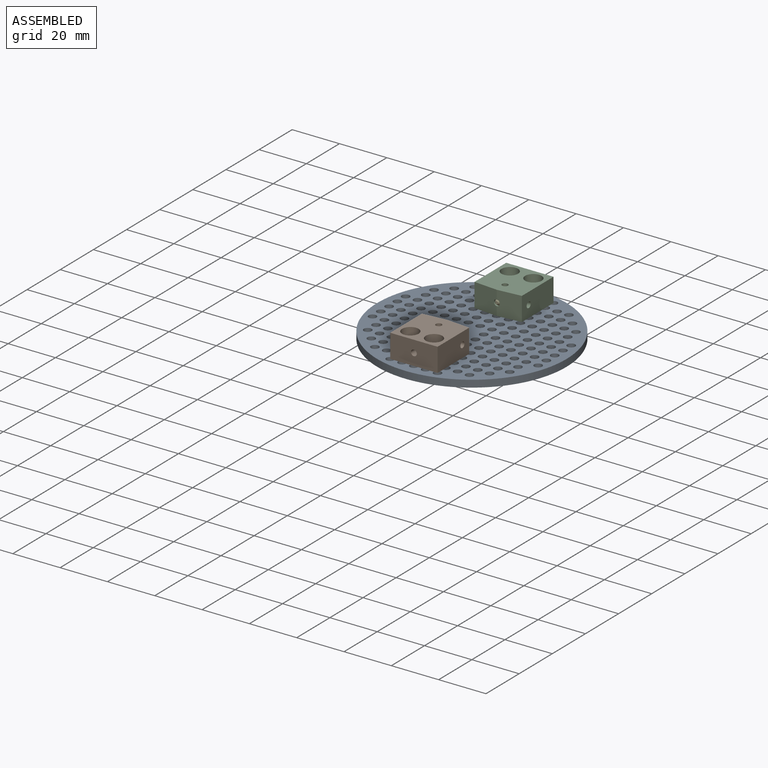
[diagram: assembled view]
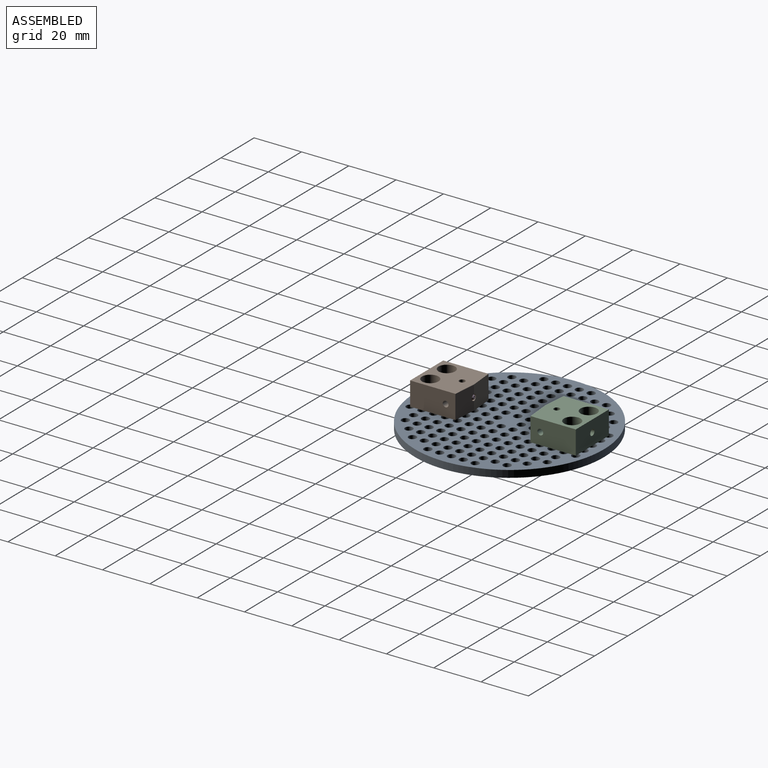
[diagram: assembled view, second angle]
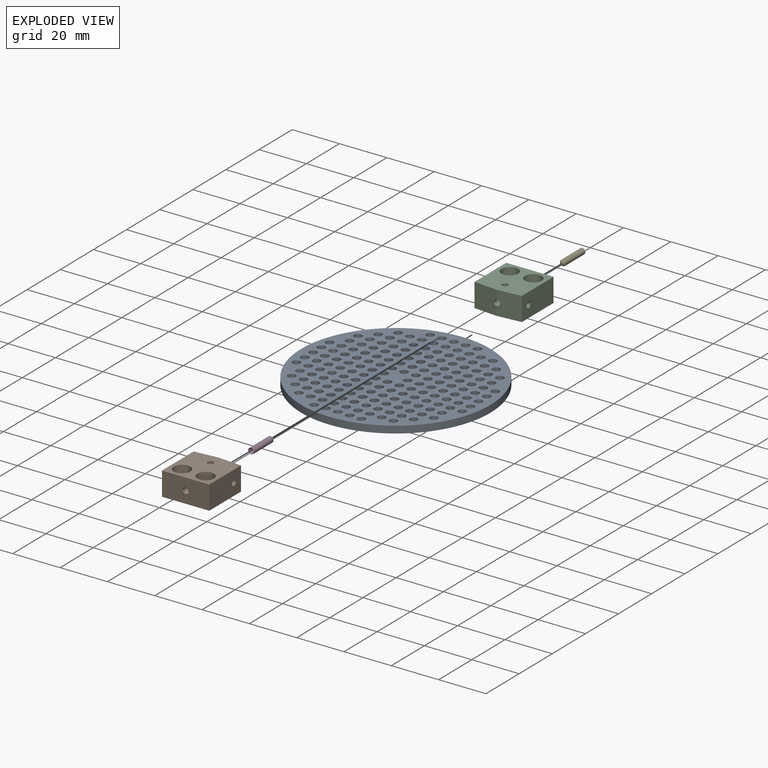
[diagram: exploded view]
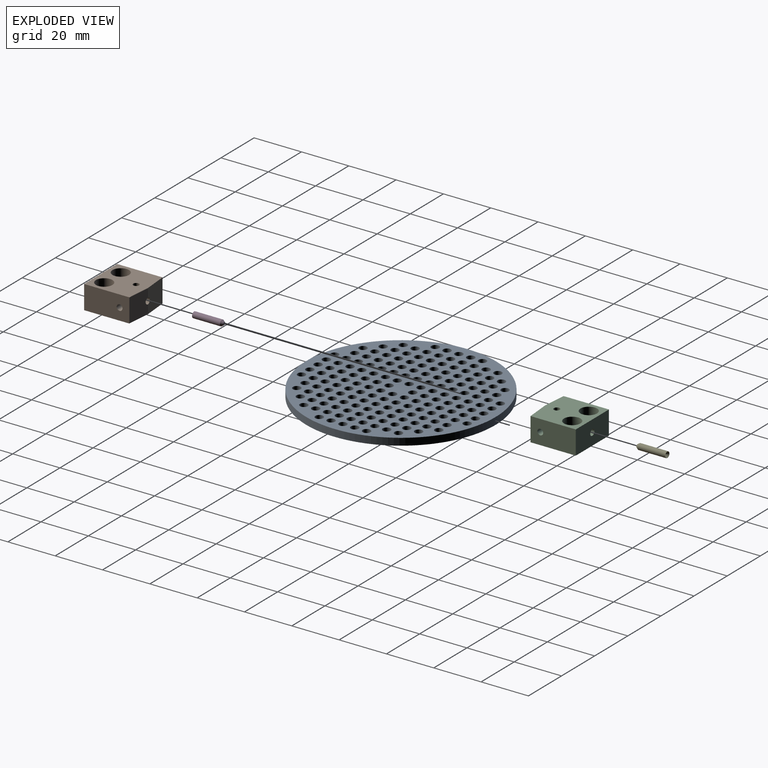
[diagram: exploded view, second angle]
FCSTD DOCUMENT  (FreeCAD 0.21R0.21.2)
Label: PhilippsXL30_DipoleTrap
License: All rights reserved
LicenseURL: https://en.wikipedia.org/wiki/All_rights_reserved
objects: Part::FeaturePython×8, App::Link×5, Part::Cylinder×2
note: 10 computed .brp shape members not serialized (recipe doc carries the construction recipe); baked Part::Feature solids carry a one-line shape summary decoded from their .brp
EXTERNAL_REF file=XL30SampleholderBreadboard_D80.FCStd obj=Cut
EXTERNAL_REF file=../../Optics/FiberMount/StaticFiberFerruleMount_M4.FCStd obj=Cut004
EXTERNAL_REF file=../../Optics/FiberMount/FiberFerruleParameterized.FCStd obj=Cut

FEATURE [App::Link] Link  label="Breadboard"
  LinkPlacement = pos=(0,0,-3) rot=(0,0,1;0rad)
  LinkedObject = -> <external XL30SampleholderBreadboard_D80.FCStd>#Cut
  Placement = pos=(0,0,-3) rot=(0,0,1;0rad)
FEATURE [App::Link] Link001  label="FiberMount"
  LinkPlacement = pos=(0,-35,0) rot=(0,0,1;0rad)
  LinkedObject = -> <external ../../Optics/FiberMount/StaticFiberFerruleMount_M4.FCStd>#Cut004
  Placement = pos=(0,-35,0) rot=(0,0,1;0rad)
FEATURE [App::Link] Link002  label="FiberMount001"
  LinkPlacement = pos=(0,35,0) rot=(0,0,1;3.14159rad)
  LinkedObject = -> <external ../../Optics/FiberMount/StaticFiberFerruleMount_M4.FCStd>#Cut004
  Placement = pos=(0,35,0) rot=(0,0,1;3.14159rad)
FEATURE [Part::FeaturePython] Screw  label="M4x8-Screw"  # Fasteners workbench fastener (typed FeaturePython)
  Placement = pos=(-5,-30,6) rot=(0,0,1;0rad)
  diameter = 4
  invert = false
  leftHanded = false
  length = 1
  lengthCustom = 8
  matchOuter = false
  offset = 0
  thread = false
  type = 34
FEATURE [Part::FeaturePython] Screw001  label="M4x8-Screw010"  # Fasteners workbench fastener (typed FeaturePython)
  Placement = pos=(5,-30,6) rot=(0,0,1;0rad)
  diameter = 4
  invert = false
  leftHanded = false
  length = 1
  lengthCustom = 8
  matchOuter = false
  offset = 0
  thread = false
  type = 34
FEATURE [Part::FeaturePython] Screw002  label="M4x8-Screw011"  # Fasteners workbench fastener (typed FeaturePython)
  Placement = pos=(-5,30,6) rot=(0,0,1;0rad)
  diameter = 4
  invert = false
  leftHanded = false
  length = 1
  lengthCustom = 8
  matchOuter = false
  offset = 0
  thread = false
  type = 34
FEATURE [Part::FeaturePython] Screw003  label="M4x8-Screw012"  # Fasteners workbench fastener (typed FeaturePython)
  Placement = pos=(5,30,6) rot=(0,0,1;0rad)
  diameter = 4
  invert = false
  leftHanded = false
  length = 1
  lengthCustom = 8
  matchOuter = false
  offset = 0
  thread = false
  type = 34
FEATURE [Part::Cylinder] Cylinder  label="Fiber1"
  Angle = 360
  AttacherType = Attacher::AttachEngine3D
  FirstAngle = 0
  Height = 12.7
  Placement = pos=(0,14.9,5) rot=(1,0,0;-1.5708rad)
  Radius = 0.22
  SecondAngle = 0
FEATURE [Part::Cylinder] Cylinder001  label="Fiber2"
  Angle = 360
  AttacherType = Attacher::AttachEngine3D
  FirstAngle = 0
  Height = 12.7
  Placement = pos=(0,-14.9,5) rot=(1,0,0;1.5708rad)
  Radius = 0.22
  SecondAngle = 0
FEATURE [Part::FeaturePython] ThreadedRod  label="M3x5-ThreadedRod"  # Fasteners workbench fastener (typed FeaturePython)
  Placement = pos=(0,20,11.25) rot=(0,0,1;0rad)
  diameter = 4
  diameterCustom = 6
  invert = false
  leftHanded = false
  length = 5
  matchOuter = false
  offset = 0
  pitchCustom = 1
  thread = false
  type = 4
FEATURE [Part::FeaturePython] ThreadedRod001  label="M3x5-ThreadedRod004"  # Fasteners workbench fastener (typed FeaturePython)
  Placement = pos=(0,-20,11.25) rot=(0,0,1;0rad)
  diameter = 4
  diameterCustom = 6
  invert = false
  leftHanded = false
  length = 5
  matchOuter = false
  offset = 0
  pitchCustom = 1
  thread = false
  type = 4
FEATURE [Part::FeaturePython] ThreadedRod002  label="M3x5-ThreadedRod009"  # Fasteners workbench fastener (typed FeaturePython)
  Placement = pos=(-1.25,-20,5) rot=(0,1,0;1.5708rad)
  diameter = 4
  diameterCustom = 6
  invert = false
  leftHanded = false
  length = 5
  matchOuter = false
  offset = 0
  pitchCustom = 1
  thread = false
  type = 4
FEATURE [Part::FeaturePython] ThreadedRod003  label="M3x5-ThreadedRod010"  # Fasteners workbench fastener (typed FeaturePython)
  Placement = pos=(-1.25,20,5) rot=(0,1,0;1.5708rad)
  diameter = 4
  diameterCustom = 6
  invert = false
  leftHanded = false
  length = 5
  matchOuter = false
  offset = 0
  pitchCustom = 1
  thread = false
  type = 4
FEATURE [App::Link] Link003  label="FiberFerrule"
  LinkPlacement = pos=(0,-14.9,5) rot=(1,0,0;1.5708rad)
  LinkedObject = -> <external ../../Optics/FiberMount/FiberFerruleParameterized.FCStd>#Cut
  Placement = pos=(0,-14.9,5) rot=(1,0,0;1.5708rad)
FEATURE [App::Link] Link004  label="FiberFerrule001"
  LinkPlacement = pos=(0,14.9,5) rot=(1,0,0;-1.5708rad)
  LinkedObject = -> <external ../../Optics/FiberMount/FiberFerruleParameterized.FCStd>#Cut
  Placement = pos=(0,14.9,5) rot=(1,0,0;-1.5708rad)

RESOLVED EXTERNAL PARTS (link-assembly join: the EXTERNAL_REF files above that resolve inside this repo's crawl, each included once):
---- part ../../Optics/FiberMount/FiberFerruleParameterized.FCStd = doc fcstd_4d1104f74157 ----
FCSTD DOCUMENT  (FreeCAD 0.21R0.21.2)
Label: FiberFerruleParameterized
License: All rights reserved
LicenseURL: https://en.wikipedia.org/wiki/All_rights_reserved
objects: Part::Cylinder×2, Part::Cone×2, Part::MultiFuse×2, Spreadsheet::Sheet×1, Part::Cut×1
note: 7 computed .brp shape members not serialized (recipe doc carries the construction recipe); baked Part::Feature solids carry a one-line shape summary decoded from their .brp

FEATURE [Spreadsheet::Sheet] Spreadsheet  label="FerruleConfig"
  cells = A2='Ferrule OD; B2(ferrule_od)=2.5; C2='outer diameter; D2='typ. 2.5mm or 1.25mm; A3='Ferrule ID; B3(ferrule_id)=0.44; C3='Inner diameter; D3='typ. 440 um / 125um / 231 um; A4='Ferrule Length; B4(ferrule_length)=12.7; C4='Ferrule length; D4='typ 12.7mm / 10.5mm; A5='Front angle; B5(ferrule_front_angle)=35; C5='Angle on front; D5='typ 35 deg; A6='Back angle; B6(ferrule_back_angle)=35; C6='Angle on back; D6='typ 35 deg
FEATURE [Part::Cylinder] Cylinder
  Angle = 360
  AttacherType = Attacher::AttachEngine3D
  FirstAngle = 0
  Height = 11.7717
  Placement = pos=(0,0,0.928296) rot=(0,0,1;0rad)
  Radius = 1.25
  SecondAngle = 0
  expr: .Placement.Base.z = (<<FerruleConfig>>.ferrule_od - 1.2) / (2 * tan(<<FerruleConfig>>.ferrule_front_angle))
  expr: Height = <<FerruleConfig>>.ferrule_length - (<<FerruleConfig>>.ferrule_od - 1.2) / (2 * tan(<<FerruleConfig>>.ferrule_front_angle))
  expr: Radius = <<FerruleConfig>>.ferrule_od / 2
FEATURE [Part::Cylinder] Cylinder001
  Angle = 360
  AttacherType = Attacher::AttachEngine3D
  FirstAngle = 0
  Height = 12.7
  Radius = 0.22
  SecondAngle = 0
  expr: Height = <<FerruleConfig>>.ferrule_length
  expr: Radius = <<FerruleConfig>>.ferrule_id / 2
FEATURE [Part::Cone] Cone
  Angle = 360
  AttacherType = Attacher::AttachEngine3D
  Height = 0.928296
  Radius1 = 0.6
  Radius2 = 1.25
  expr: Height = (<<FerruleConfig>>.ferrule_od - 1.2) / (2 * tan(<<FerruleConfig>>.ferrule_front_angle))
  expr: Radius2 = <<FerruleConfig>>.ferrule_od / 2
FEATURE [Part::MultiFuse] Fusion
  Shapes = -> [Cylinder,Cone]
FEATURE [Part::Cone] Cone001
  Angle = 360
  AttacherType = Attacher::AttachEngine3D
  Height = 1.47099
  Placement = pos=(0,0,11.229) rot=(0,0,1;0rad)
  Radius1 = 0.22
  Radius2 = 1.25
  expr: .Placement.Base.z = <<FerruleConfig>>.ferrule_length - (<<FerruleConfig>>.ferrule_od - <<FerruleConfig>>.ferrule_id) / (2 * tan(<<FerruleConfig>>.ferrule_back_angle))
  expr: Height = (<<FerruleConfig>>.ferrule_od - <<FerruleConfig>>.ferrule_id) / (2 * tan(<<FerruleConfig>>.ferrule_back_angle))
  expr: Radius1 = <<FerruleConfig>>.ferrule_id / 2
  expr: Radius2 = <<FerruleConfig>>.ferrule_od / 2
FEATURE [Part::MultiFuse] Fusion001
  Shapes = -> [Cylinder001,Cone001]
FEATURE [Part::Cut] Cut  label="FiberFerrule"
  Base = -> Fusion
  Tool = -> Fusion001
---- part ../../Optics/FiberMount/StaticFiberFerruleMount_M4.FCStd = doc fcstd_c1d36705cfa4 ----
FCSTD DOCUMENT  (FreeCAD 0.21R0.21.2)
Label: StaticFiberFerruleMount_M4
License: All rights reserved
LicenseURL: https://en.wikipedia.org/wiki/All_rights_reserved
objects: TechDraw::DrawViewDimension×23, Part::Cylinder×5, Part::Cut×5, TechDraw::DrawProjGroupItem×5, Part::MultiFuse×4, Part::Box×3, TechDraw::DrawViewPart×3, TechDraw::DrawViewSection×3, Part::FeaturePython×2, TechDraw::DrawSVGTemplate×2, TechDraw::DrawPage×2, Part::Compound×1, TechDraw::DrawProjGroup×1
note: 56 computed .brp shape members not serialized (recipe doc carries the construction recipe); baked Part::Feature solids carry a one-line shape summary decoded from their .brp

FEATURE [Part::Box] Box  label="Cube"
  AttacherType = Attacher::AttachEngine3D
  Height = 10
  Length = 20
  Placement = pos=(-10,0,0) rot=(0,0,1;0rad)
  Width = 20
FEATURE [Part::Cylinder] Cylinder
  Angle = 360
  AttacherType = Attacher::AttachEngine3D
  FirstAngle = 0
  Height = 4
  Placement = pos=(0,0,6) rot=(0,0,1;0rad)
  Radius = 3.5
  SecondAngle = 0
FEATURE [Part::Cylinder] Cylinder001
  Angle = 360
  AttacherType = Attacher::AttachEngine3D
  FirstAngle = 0
  Height = 10
  Radius = 2.15
  SecondAngle = 0
FEATURE [Part::MultiFuse] Fusion
  Placement = pos=(-5,5,0) rot=(0,0,1;0rad)
  Shapes = -> [Cylinder001,Cylinder]
FEATURE [Part::Cylinder] Cylinder002
  Angle = 360
  AttacherType = Attacher::AttachEngine3D
  FirstAngle = 0
  Height = 4
  Placement = pos=(0,0,6) rot=(0,0,1;0rad)
  Radius = 3.5
  SecondAngle = 0
FEATURE [Part::Cylinder] Cylinder003
  Angle = 360
  AttacherType = Attacher::AttachEngine3D
  FirstAngle = 0
  Height = 10
  Radius = 2.15
  SecondAngle = 0
FEATURE [Part::MultiFuse] Fusion001
  Placement = pos=(5,5,0) rot=(0,0,1;0rad)
  Shapes = -> [Cylinder003,Cylinder002]
FEATURE [Part::MultiFuse] Fusion002
  Shapes = -> [Fusion,Fusion001]
FEATURE [Part::Cut] Cut
  Base = -> Box
  Tool = -> Fusion002
FEATURE [Part::Cylinder] Cylinder004
  Angle = 360
  AttacherType = Attacher::AttachEngine3D
  FirstAngle = 0
  Height = 20
  Placement = pos=(0,0,5) rot=(1,0,0;-1.5708rad)
  Radius = 1.25
  SecondAngle = 0
FEATURE [Part::Cut] Cut001
  Base = -> Cut
  Tool = -> Cylinder004
FEATURE [Part::FeaturePython] ScrewTap  label="M3x20-ScrewTap"  # Fasteners workbench fastener (typed FeaturePython)
  Placement = pos=(10,15,5) rot=(0,1,0;1.5708rad)
  diameter = 4
  diameterCustom = 20
  invert = false
  leftHanded = false
  length = 20
  matchOuter = false
  offset = 0
  pitchCustom = 1
  thread = false
  type = 2
FEATURE [Part::FeaturePython] ScrewTap001  label="M3x20-ScrewTap001"  # Fasteners workbench fastener (typed FeaturePython)
  Placement = pos=(0,15,15) rot=(0,1,0;0rad)
  diameter = 4
  diameterCustom = 20
  invert = false
  leftHanded = false
  length = 20
  matchOuter = false
  offset = 0
  pitchCustom = 1
  thread = false
  type = 2
FEATURE [Part::Cut] Cut002
  Base = -> Cut001
  Tool = -> ScrewTap
FEATURE [Part::Cut] Cut003
  Base = -> Cut002
  Tool = -> ScrewTap001
FEATURE [Part::Box] Box001  label="Cube001"
  AttacherType = Attacher::AttachEngine3D
  Height = 10
  Length = 15
  Placement = pos=(0,20,0) rot=(0,0,1;-0.087266rad)
  Width = 5
FEATURE [Part::Box] Box002  label="Cube002"
  AttacherType = Attacher::AttachEngine3D
  Height = 10
  Length = 15
  Placement = pos=(0,20,0) rot=(0,0,-1;0.087266rad)
  Width = 5
FEATURE [Part::Compound] Compound
  Links = -> [Box002]
  Placement = pos=(0,0,10) rot=(0,1,0;3.14159rad)
FEATURE [Part::MultiFuse] Fusion003
  Shapes = -> [Compound,Box001]
FEATURE [Part::Cut] Cut004  label="FiberMount"
  Base = -> Cut003
  Tool = -> Fusion003
FEATURE [TechDraw::DrawSVGTemplate] Template
  EditableTexts = Designed_by_Name=Thomas Spielauer; FC-Date=2024-01-30; FC-SC=mm; FC-Title=M4 Fiber Mount; Subtitle=For 2.5mm Ferrules
  Height = 210
  Orientation = 1
  Template = <path>
  Width = 297
FEATURE [TechDraw::DrawProjGroupItem] ProjItem  label="Front"
  CoarseView = false
  Direction = (0,0,1)
  Focus = 100
  HardHidden = false
  IsoCount = 0
  IsoHidden = false
  IsoVisible = false
  LockPosition = true
  Perspective = false
  Rotation = 0
  RotationVector = (-1,0,0)
  Scale = 2.5
  ScaleType = 2
  ScrubCount = 0
  SeamHidden = false
  SeamVisible = false
  SmoothHidden = false
  SmoothVisible = true
  Source = -> [Cut004]
  Type = 0
  X = 0
  XDirection = (-1,0,0)
  Y = 0
FEATURE [TechDraw::DrawProjGroupItem] ProjItem001  label="Left"
  CoarseView = false
  Direction = (1,0,1e-16)
  Focus = 100
  HardHidden = false
  IsoCount = 0
  IsoHidden = false
  IsoVisible = false
  LockPosition = false
  Perspective = false
  Rotation = 0
  RotationVector = (1,0,0)
  Scale = 2.5
  ScaleType = 2
  ScrubCount = 0
  SeamHidden = false
  SeamVisible = false
  SmoothHidden = false
  SmoothVisible = true
  Source = -> [Cut004]
  Type = 1
  X = 83.8051
  XDirection = (-1e-16,0,1)
  Y = 0
FEATURE [TechDraw::DrawProjGroupItem] ProjItem002  label="Rear"
  CoarseView = false
  Direction = (0,0,-1)
  Focus = 100
  HardHidden = false
  IsoCount = 0
  IsoHidden = false
  IsoVisible = false
  LockPosition = false
  Perspective = false
  Rotation = 0
  RotationVector = (1,0,0)
  Scale = 2.5
  ScaleType = 2
  ScrubCount = 0
  SeamHidden = false
  SeamVisible = false
  SmoothHidden = false
  SmoothVisible = true
  Source = -> [Cut004]
  Type = 3
  X = 176.998
  XDirection = (1,0,0)
  Y = 0
FEATURE [TechDraw::DrawProjGroupItem] ProjItem003  label="Top"
  CoarseView = false
  Direction = (0,-1,0)
  Focus = 100
  HardHidden = false
  IsoCount = 0
  IsoHidden = false
  IsoVisible = false
  LockPosition = false
  Perspective = false
  Rotation = 0
  RotationVector = (1,0,0)
  Scale = 2.5
  ScaleType = 2
  ScrubCount = 0
  SeamHidden = false
  SeamVisible = false
  SmoothHidden = false
  SmoothVisible = true
  Source = -> [Cut004]
  Type = 4
  X = 0
  XDirection = (-1,0,0)
  Y = -69.8299
FEATURE [TechDraw::DrawProjGroupItem] ProjItem004  label="Bottom"
  CoarseView = false
  Direction = (0,1,0)
  Focus = 100
  HardHidden = false
  IsoCount = 0
  IsoHidden = false
  IsoVisible = false
  LockPosition = false
  Perspective = false
  Rotation = 0
  RotationVector = (1,0,0)
  Scale = 2.5
  ScaleType = 2
  ScrubCount = 0
  SeamHidden = false
  SeamVisible = false
  SmoothHidden = false
  SmoothVisible = true
  Source = -> [Cut004]
  Type = 5
  X = 0
  XDirection = (-1,0,0)
  Y = 66.0072
FEATURE [TechDraw::DrawProjGroup] ProjGroup
  Anchor = -> ProjItem
  AutoDistribute = false
  LockPosition = false
  ProjectionType = 0
  Rotation = 0
  Scale = 2.5
  ScaleType = 2
  Source = -> [Cut004]
  Views = -> [ProjItem,ProjItem001,ProjItem002,ProjItem003,ProjItem004]
  X = 63.5172
  Y = 109.729
  spacingX = 15
  spacingY = 15
FEATURE [TechDraw::DrawViewDimension] Dimension
  AngleOverride = false
  Arbitrary = false
  ArbitraryTolerances = false
  EqualTolerance = true
  ExtensionAngle = 0
  FormatSpec = %.2w
  FormatSpecOverTolerance = %+.2w
  FormatSpecUnderTolerance = %+.2w
  Inverted = false
  LineAngle = 0
  LockPosition = false
  MeasureType = 1
  OverTolerance = 0
  References2D = -> [ProjItem002]
  Rotation = 0
  ScaleType = 0
  TheoreticalExact = false
  Type = 1
  UnderTolerance = 0
  X = -1.08718
  Y = 38.276
FEATURE [TechDraw::DrawViewDimension] Dimension001
  AngleOverride = false
  Arbitrary = false
  ArbitraryTolerances = false
  EqualTolerance = true
  ExtensionAngle = 0
  FormatSpec = %.2w
  FormatSpecOverTolerance = %+.2w
  FormatSpecUnderTolerance = %+.2w
  Inverted = false
  LineAngle = 0
  LockPosition = false
  MeasureType = 1
  OverTolerance = 0
  References2D = -> [ProjItem002]
  Rotation = 0
  ScaleType = 0
  TheoreticalExact = false
  Type = 2
  UnderTolerance = 0
  X = 33.6541
  Y = 3.92646
FEATURE [TechDraw::DrawViewDimension] Dimension002
  AngleOverride = false
  Arbitrary = false
  ArbitraryTolerances = false
  EqualTolerance = true
  ExtensionAngle = 0
  FormatSpec = %.2w
  FormatSpecOverTolerance = %+.2w
  FormatSpecUnderTolerance = %+.2w
  Inverted = false
  LineAngle = 0
  LockPosition = false
  MeasureType = 1
  OverTolerance = 0
  References2D = -> [ProjItem002]
  Rotation = 0
  ScaleType = 0
  TheoreticalExact = false
  Type = 1
  UnderTolerance = 0
  X = -19.3984
  Y = 49.6787
FEATURE [TechDraw::DrawViewDimension] Dimension003
  AngleOverride = false
  Arbitrary = false
  ArbitraryTolerances = false
  EqualTolerance = true
  ExtensionAngle = 0
  FormatSpec = %.2w
  FormatSpecOverTolerance = %+.2w
  FormatSpecUnderTolerance = %+.2w
  Inverted = false
  LineAngle = 0
  LockPosition = false
  MeasureType = 1
  OverTolerance = 0
  References2D = -> [ProjItem002]
  Rotation = 0
  ScaleType = 0
  TheoreticalExact = false
  Type = 1
  UnderTolerance = 0
  X = 18.4123
  Y = 48.3541
FEATURE [TechDraw::DrawViewDimension] Dimension004
  AngleOverride = false
  Arbitrary = false
  ArbitraryTolerances = false
  EqualTolerance = true
  ExtensionAngle = 0
  FormatSpec = %.2w
  FormatSpecOverTolerance = %+.2w
  FormatSpecUnderTolerance = %+.2w
  Inverted = false
  LineAngle = 0
  LockPosition = false
  MeasureType = 1
  OverTolerance = 0
  References2D = -> [ProjItem002]
  Rotation = 0
  ScaleType = 0
  TheoreticalExact = false
  Type = 2
  UnderTolerance = 0
  X = -36.9072
  Y = 21.9842
FEATURE [TechDraw::DrawViewDimension] Dimension005
  AngleOverride = false
  Arbitrary = false
  ArbitraryTolerances = false
  EqualTolerance = true
  ExtensionAngle = 0
  FormatSpec = %.2w
  FormatSpecOverTolerance = %+.2w
  FormatSpecUnderTolerance = %+.2w
  Inverted = false
  LineAngle = 0
  LockPosition = false
  MeasureType = 1
  OverTolerance = 0
  References2D = -> [ProjItem002]
  Rotation = 0
  ScaleType = 0
  TheoreticalExact = false
  Type = 2
  UnderTolerance = 0
  X = -49.4824
  Y = 5.98178
FEATURE [TechDraw::DrawViewDimension] Dimension006
  AngleOverride = false
  Arbitrary = false
  ArbitraryTolerances = false
  EqualTolerance = true
  ExtensionAngle = 0
  FormatSpec = %.2w
  FormatSpecOverTolerance = %+.2w
  FormatSpecUnderTolerance = %+.2w
  Inverted = false
  LineAngle = 0
  LockPosition = false
  MeasureType = 1
  OverTolerance = 0
  References2D = -> [ProjItem001]
  Rotation = 0
  ScaleType = 0
  TheoreticalExact = false
  Type = 2
  UnderTolerance = 0
  X = 20.9282
  Y = -0.08017
FEATURE [TechDraw::DrawViewDimension] Dimension007
  AngleOverride = false
  Arbitrary = false
  ArbitraryTolerances = false
  EqualTolerance = true
  ExtensionAngle = 0
  FormatSpec = %.2w
  FormatSpecOverTolerance = %+.2w
  FormatSpecUnderTolerance = %+.2w
  Inverted = false
  LineAngle = 0
  LockPosition = false
  MeasureType = 1
  OverTolerance = 0
  References2D = -> [ProjItem001]
  Rotation = 0
  ScaleType = 0
  TheoreticalExact = false
  Type = 1
  UnderTolerance = 0
  X = 1.11941
  Y = 39.7819
FEATURE [TechDraw::DrawViewDimension] Dimension008
  AngleOverride = false
  Arbitrary = false
  ArbitraryTolerances = false
  EqualTolerance = true
  ExtensionAngle = 0
  FormatSpec = %.2w
  FormatSpecOverTolerance = %+.2w
  FormatSpecUnderTolerance = %+.2w
  Inverted = false
  LineAngle = 0
  LockPosition = false
  MeasureType = 1
  OverTolerance = 0
  References2D = -> [ProjItem]
  Rotation = 0
  ScaleType = 0
  TheoreticalExact = false
  Type = 6
  UnderTolerance = 0
  X = 17.4114
  Y = -11.6712
FEATURE [TechDraw::DrawViewDimension] Dimension009
  AngleOverride = false
  Arbitrary = false
  ArbitraryTolerances = false
  EqualTolerance = true
  ExtensionAngle = 0
  FormatSpec = ⌀%.2w
  FormatSpecOverTolerance = %+.2w
  FormatSpecUnderTolerance = %+.2w
  Inverted = false
  LineAngle = 0
  LockPosition = false
  MeasureType = 1
  OverTolerance = 0
  References2D = -> [ProjItem]
  Rotation = 0
  ScaleType = 0
  TheoreticalExact = false
  Type = 5
  UnderTolerance = 0
  X = 34.847
  Y = 32.1835
FEATURE [TechDraw::DrawViewDimension] Dimension010
  AngleOverride = false
  Arbitrary = false
  ArbitraryTolerances = false
  EqualTolerance = true
  ExtensionAngle = 0
  FormatSpec = ⌀%.2w
  FormatSpecOverTolerance = %+.2w
  FormatSpecUnderTolerance = %+.2w
  Inverted = false
  LineAngle = 0
  LockPosition = false
  MeasureType = 1
  OverTolerance = 0
  References2D = -> [ProjItem]
  Rotation = 0
  ScaleType = 0
  TheoreticalExact = false
  Type = 5
  UnderTolerance = 0
  X = 42.735
  Y = 24.4512
FEATURE [TechDraw::DrawViewDimension] Dimension011
  AngleOverride = false
  Arbitrary = false
  ArbitraryTolerances = false
  EqualTolerance = true
  ExtensionAngle = 0
  FormatSpec = ⌀%.2w
  FormatSpecOverTolerance = %+.2w
  FormatSpecUnderTolerance = %+.2w
  Inverted = false
  LineAngle = 0
  LockPosition = false
  MeasureType = 1
  OverTolerance = 0
  References2D = -> [ProjItem003]
  Rotation = 0
  ScaleType = 0
  TheoreticalExact = false
  Type = 5
  UnderTolerance = 0
  X = 36.0608
  Y = 7.78296
FEATURE [TechDraw::DrawViewDimension] Dimension012
  AngleOverride = false
  Arbitrary = false
  ArbitraryTolerances = false
  EqualTolerance = true
  ExtensionAngle = 0
  FormatSpec = ⌀%.2w (M3)
  FormatSpecOverTolerance = %+.2w
  FormatSpecUnderTolerance = %+.2w
  Inverted = false
  LineAngle = 0
  LockPosition = false
  MeasureType = 1
  OverTolerance = 0
  References2D = -> [ProjItem]
  Rotation = 0
  ScaleType = 0
  TheoreticalExact = false
  Type = 5
  UnderTolerance = 0
  X = 47.6967
  Y = -20.8245
FEATURE [TechDraw::DrawViewDimension] Dimension013
  AngleOverride = false
  Arbitrary = false
  ArbitraryTolerances = false
  EqualTolerance = true
  ExtensionAngle = 0
  FormatSpec = ⌀%.2w (M3)
  FormatSpecOverTolerance = %+.2w
  FormatSpecUnderTolerance = %+.2w
  Inverted = false
  LineAngle = 0
  LockPosition = false
  MeasureType = 1
  OverTolerance = 0
  References2D = -> [ProjItem001]
  Rotation = 0
  ScaleType = 0
  TheoreticalExact = false
  Type = 5
  UnderTolerance = 0
  X = -33.134
  Y = 3.74181
FEATURE [TechDraw::DrawViewDimension] Dimension014
  AngleOverride = false
  Arbitrary = false
  ArbitraryTolerances = false
  EqualTolerance = true
  ExtensionAngle = 0
  FormatSpec = %.2w
  FormatSpecOverTolerance = %+.2w
  FormatSpecUnderTolerance = %+.2w
  Inverted = false
  LineAngle = 0
  LockPosition = false
  MeasureType = 1
  OverTolerance = 0
  References2D = -> [ProjItem004]
  Rotation = 0
  ScaleType = 0
  TheoreticalExact = false
  Type = 1
  UnderTolerance = 0
  X = 10.9437
  Y = -18.4908
FEATURE [TechDraw::DrawPage] Page
  KeepUpdated = true
  NextBalloonIndex = 1
  ProjectionType = 0
  Template = -> Template
  Views = -> [ProjGroup,Dimension,Dimension001,Dimension002,Dimension003,Dimension004,Dimension005,Dimension006,Dimension007,Dimension008,Dimension009,Dimension010,Dimension011,Dimension012,Dimension013,Dimension014]
FEATURE [TechDraw::DrawSVGTemplate] Template001
  EditableTexts = Designed_by_Name=Thomas Spielauer; FC-Date=2024-01-30; FC-SC=mm; FC-SH=2/2; FC-Title=M4 Fiber Mount; Subtitle=For 2.5mm fiber ferrules
  Height = 210
  Orientation = 1
  Template = <path>
  Width = 297
FEATURE [TechDraw::DrawViewPart] View
  CoarseView = false
  Direction = (0,0,1)
  Focus = 100
  HardHidden = false
  IsoCount = 0
  IsoHidden = false
  IsoVisible = false
  LockPosition = false
  Perspective = false
  Rotation = 0
  Scale = 2
  ScaleType = 2
  ScrubCount = 0
  SeamHidden = false
  SeamVisible = false
  SmoothHidden = false
  SmoothVisible = true
  Source = -> [Cut004]
  X = 49.0155
  XDirection = (-1,0,0)
  Y = 162
FEATURE [TechDraw::DrawViewSection] SectionView  label="Section  - "
  BaseView = -> View
  CoarseView = false
  CutSurfaceDisplay = 2
  Direction = (1,1e-16,0)
  FileGeomPattern = <path>
  FileHatchPattern = <path>
  Focus = 100
  FuseBeforeCut = false
  HardHidden = false
  HatchOffset = (0,0,0)
  HatchRotation = 0
  HatchScale = 1
  IsoCount = 0
  IsoHidden = false
  IsoVisible = false
  LockPosition = false
  NameGeomPattern = Diamond
  Perspective = false
  Rotation = -90
  Scale = 2
  ScaleType = 2
  ScrubCount = 0
  SeamHidden = false
  SeamVisible = false
  SectionDirection = 4
  SectionNormal = (1,1e-16,0)
  SectionOrigin = (0,10,5)
  SmoothHidden = false
  SmoothVisible = true
  Source = -> [Cut004]
  TrimAfterCut = false
  X = 98.3829
  XDirection = (-1e-16,1,0)
  Y = 161.597
FEATURE [TechDraw::DrawViewPart] View001
  CoarseView = false
  Direction = (0,0,1)
  Focus = 100
  HardHidden = false
  IsoCount = 0
  IsoHidden = false
  IsoVisible = false
  LockPosition = false
  Perspective = false
  Rotation = 0
  Scale = 2
  ScaleType = 2
  ScrubCount = 0
  SeamHidden = false
  SeamVisible = false
  SmoothHidden = false
  SmoothVisible = true
  Source = -> [Cut004]
  X = 168.995
  XDirection = (-1,0,0)
  Y = 161.465
FEATURE [TechDraw::DrawViewSection] SectionView001  label="Section  - 001"
  BaseView = -> View001
  CoarseView = false
  CutSurfaceDisplay = 2
  Direction = (1,1e-16,0)
  FileGeomPattern = <path>
  FileHatchPattern = <path>
  Focus = 100
  FuseBeforeCut = false
  HardHidden = false
  HatchOffset = (0,0,0)
  HatchRotation = 0
  HatchScale = 1
  IsoCount = 0
  IsoHidden = false
  IsoVisible = false
  LockPosition = false
  NameGeomPattern = Diamond
  Perspective = false
  Rotation = -90
  Scale = 2
  ScaleType = 2
  ScrubCount = 0
  SeamHidden = false
  SeamVisible = false
  SectionDirection = 4
  SectionNormal = (1,1e-16,0)
  SectionOrigin = (5,10,5)
  SmoothHidden = false
  SmoothVisible = true
  Source = -> [Cut004]
  TrimAfterCut = false
  X = 225.041
  XDirection = (-1e-16,1,0)
  Y = 158.119
FEATURE [TechDraw::DrawViewDimension] Dimension015
  AngleOverride = false
  Arbitrary = false
  ArbitraryTolerances = false
  EqualTolerance = true
  ExtensionAngle = 0
  FormatSpec = %.2w
  FormatSpecOverTolerance = %+.2w
  FormatSpecUnderTolerance = %+.2w
  Inverted = false
  LineAngle = 0
  LockPosition = false
  MeasureType = 1
  OverTolerance = 0
  References2D = -> [SectionView]
  Rotation = 0
  ScaleType = 0
  TheoreticalExact = false
  Type = 1
  UnderTolerance = 0
  X = 9.95348
  Y = -24.9456
FEATURE [TechDraw::DrawViewDimension] Dimension016
  AngleOverride = false
  Arbitrary = false
  ArbitraryTolerances = false
  EqualTolerance = true
  ExtensionAngle = 0
  FormatSpec = %.2w (M3)
  FormatSpecOverTolerance = %+.2w
  FormatSpecUnderTolerance = %+.2w
  Inverted = false
  LineAngle = 0
  LockPosition = false
  MeasureType = 1
  OverTolerance = 0
  References2D = -> [SectionView]
  Rotation = 0
  ScaleType = 0
  TheoreticalExact = false
  Type = 2
  UnderTolerance = 0
  X = 17.8961
  Y = 1.78628
FEATURE [TechDraw::DrawViewDimension] Dimension017
  AngleOverride = false
  Arbitrary = false
  ArbitraryTolerances = false
  EqualTolerance = true
  ExtensionAngle = 0
  FormatSpec = %.2w
  FormatSpecOverTolerance = %+.2w
  FormatSpecUnderTolerance = %+.2w
  Inverted = false
  LineAngle = 0
  LockPosition = false
  MeasureType = 1
  OverTolerance = 0
  References2D = -> [SectionView001]
  Rotation = 0
  ScaleType = 0
  TheoreticalExact = false
  Type = 2
  UnderTolerance = 0
  X = 19.2955
  Y = 12.763
FEATURE [TechDraw::DrawViewDimension] Dimension018
  AngleOverride = false
  Arbitrary = false
  ArbitraryTolerances = false
  EqualTolerance = true
  ExtensionAngle = 0
  FormatSpec = %.2w
  FormatSpecOverTolerance = %+.2w
  FormatSpecUnderTolerance = %+.2w
  Inverted = false
  LineAngle = 0
  LockPosition = false
  MeasureType = 1
  OverTolerance = 0
  References2D = -> [SectionView001]
  Rotation = 0
  ScaleType = 0
  TheoreticalExact = false
  Type = 2
  UnderTolerance = 0
  X = -21.1185
  Y = 11.8913
FEATURE [TechDraw::DrawViewDimension] Dimension019
  AngleOverride = false
  Arbitrary = false
  ArbitraryTolerances = false
  EqualTolerance = true
  ExtensionAngle = 0
  FormatSpec = %.2w
  FormatSpecOverTolerance = %+.2w
  FormatSpecUnderTolerance = %+.2w
  Inverted = false
  LineAngle = 0
  LockPosition = false
  MeasureType = 1
  OverTolerance = 0
  References2D = -> [SectionView001]
  Rotation = 0
  ScaleType = 0
  TheoreticalExact = false
  Type = 1
  UnderTolerance = 0
  X = 5.85417
  Y = 33.4173
FEATURE [TechDraw::DrawViewDimension] Dimension020
  AngleOverride = false
  Arbitrary = false
  ArbitraryTolerances = false
  EqualTolerance = true
  ExtensionAngle = 0
  FormatSpec = %.2w
  FormatSpecOverTolerance = %+.2w
  FormatSpecUnderTolerance = %+.2w
  Inverted = false
  LineAngle = 0
  LockPosition = false
  MeasureType = 1
  OverTolerance = 0
  References2D = -> [SectionView001]
  Rotation = 0
  ScaleType = 0
  TheoreticalExact = false
  Type = 1
  UnderTolerance = 0
  X = -4.51158
  Y = 40.6578
FEATURE [TechDraw::DrawViewPart] View002
  CoarseView = false
  Direction = (0,0,1)
  Focus = 100
  HardHidden = false
  IsoCount = 0
  IsoHidden = false
  IsoVisible = false
  LockPosition = false
  Perspective = false
  Rotation = 90
  Scale = 2
  ScaleType = 2
  ScrubCount = 0
  SeamHidden = false
  SeamVisible = false
  SmoothHidden = false
  SmoothVisible = true
  Source = -> [Cut004]
  X = 44.9676
  XDirection = (-1,0,0)
  Y = 66.078
FEATURE [TechDraw::DrawViewSection] SectionView002  label="Section  - 002"
  BaseView = -> View002
  CoarseView = false
  CutSurfaceDisplay = 2
  Direction = (-1e-16,-1,0)
  FileGeomPattern = <path>
  FileHatchPattern = <path>
  Focus = 100
  FuseBeforeCut = false
  HardHidden = false
  HatchOffset = (0,0,0)
  HatchRotation = 0
  HatchScale = 1
  IsoCount = 0
  IsoHidden = false
  IsoVisible = false
  LockPosition = false
  NameGeomPattern = Diamond
  Perspective = false
  Rotation = 90
  Scale = 2
  ScaleType = 2
  ScrubCount = 0
  SeamHidden = false
  SeamVisible = false
  SectionDirection = 4
  SectionNormal = (-1e-16,-1,0)
  SectionOrigin = (0,15,5)
  SmoothHidden = false
  SmoothVisible = true
  Source = -> [Cut004]
  TrimAfterCut = false
  X = 99.4341
  XDirection = (-1,1e-16,0)
  Y = 66.7295
FEATURE [TechDraw::DrawViewDimension] Dimension021
  AngleOverride = false
  Arbitrary = false
  ArbitraryTolerances = false
  EqualTolerance = true
  ExtensionAngle = 0
  FormatSpec = %.2w (M3)
  FormatSpecOverTolerance = %+.2w
  FormatSpecUnderTolerance = %+.2w
  Inverted = false
  LineAngle = 0
  LockPosition = false
  MeasureType = 1
  OverTolerance = 0
  References2D = -> [SectionView002]
  Rotation = 0
  ScaleType = 0
  TheoreticalExact = false
  Type = 1
  UnderTolerance = 0
  X = 6.54939
  Y = 38.4283
FEATURE [TechDraw::DrawViewDimension] Dimension022
  AngleOverride = false
  Arbitrary = false
  ArbitraryTolerances = false
  EqualTolerance = true
  ExtensionAngle = 0
  FormatSpec = %.2w (M3)
  FormatSpecOverTolerance = %+.2w
  FormatSpecUnderTolerance = %+.2w
  Inverted = false
  LineAngle = 0
  LockPosition = false
  MeasureType = 1
  OverTolerance = 0
  References2D = -> [SectionView002]
  Rotation = 0
  ScaleType = 0
  TheoreticalExact = false
  Type = 2
  UnderTolerance = 0
  X = 32.8643
  Y = 22.8736
FEATURE [TechDraw::DrawPage] Page001
  KeepUpdated = true
  NextBalloonIndex = 1
  ProjectionType = 0
  Template = -> Template001
  Views = -> [View,SectionView,View001,SectionView001,Dimension015,Dimension016,Dimension017,Dimension018,Dimension019,Dimension020,View002,SectionView002,Dimension021,Dimension022]
note: 8 file-system paths scrubbed to <path> (originals preserved in the JSON sidecar)
---- part XL30SampleholderBreadboard_D80.FCStd = doc fcstd_d8695020600c (76012 chars; too large to inline — full recipe in that document) ----
